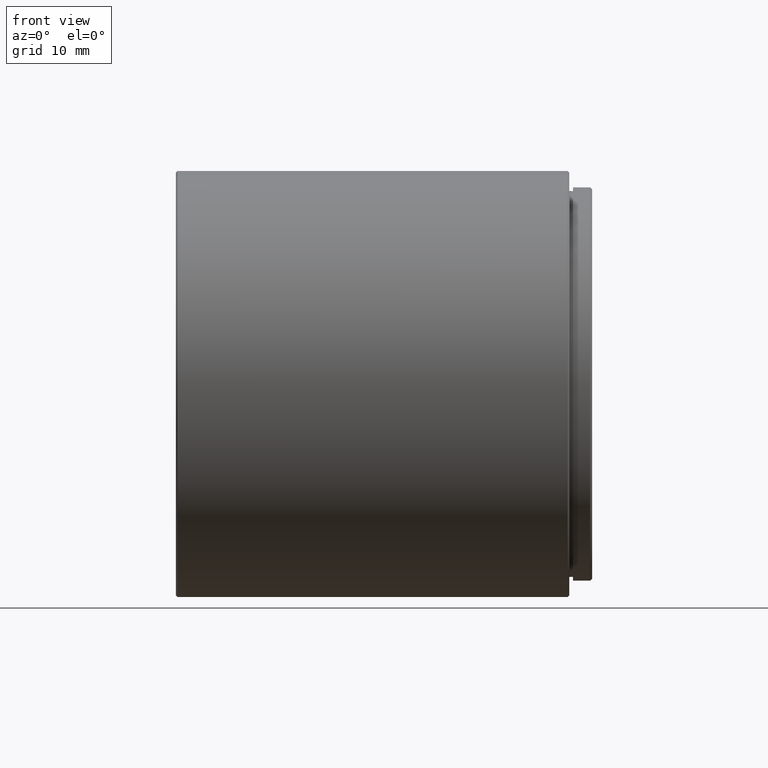
[diagram: clean part render]
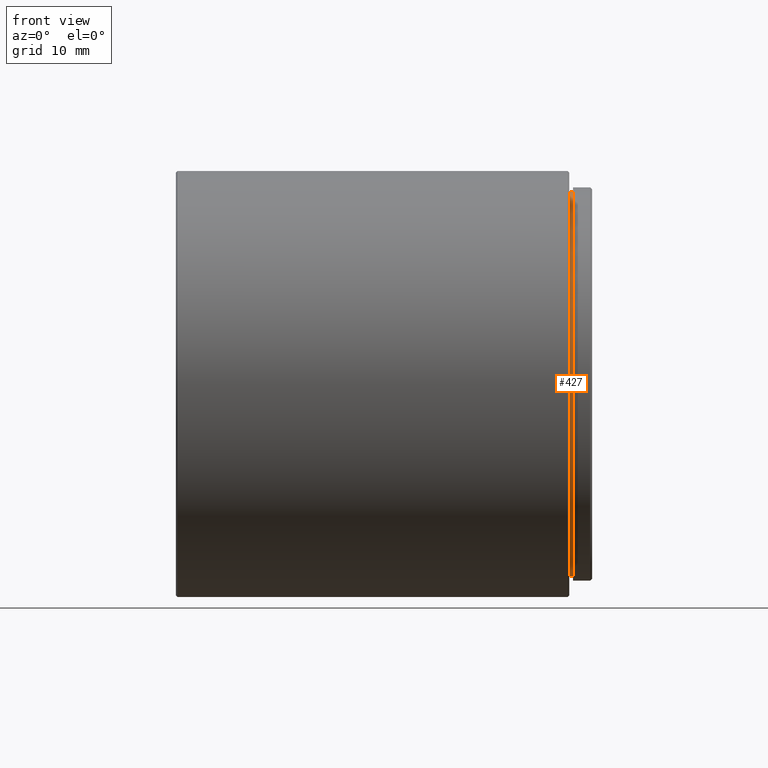
[diagram: same view with one face highlighted and labeled with its STEP entity id]
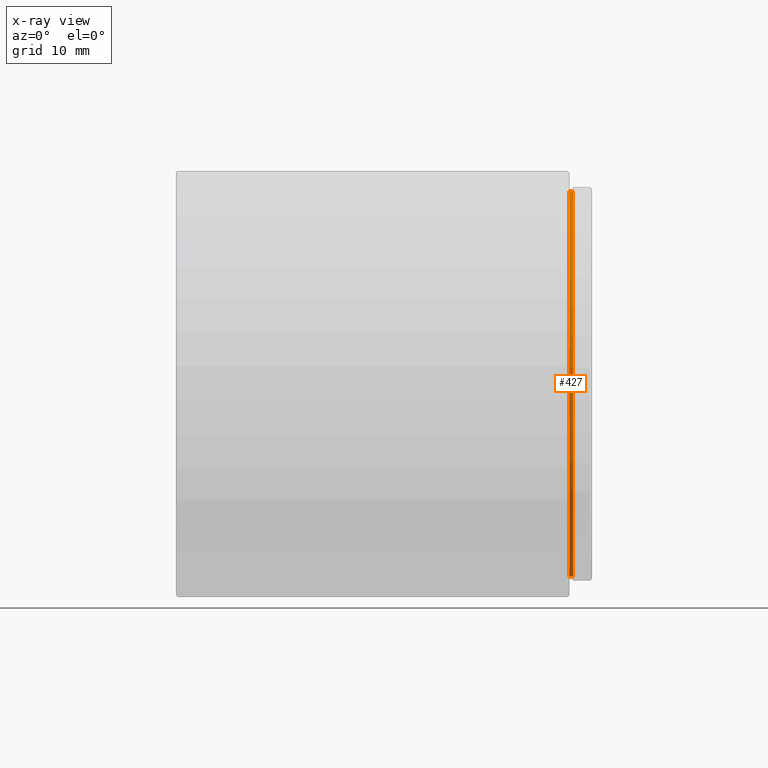
[diagram: x-ray of the same camera — body ghosted, the highlighted face saturated]
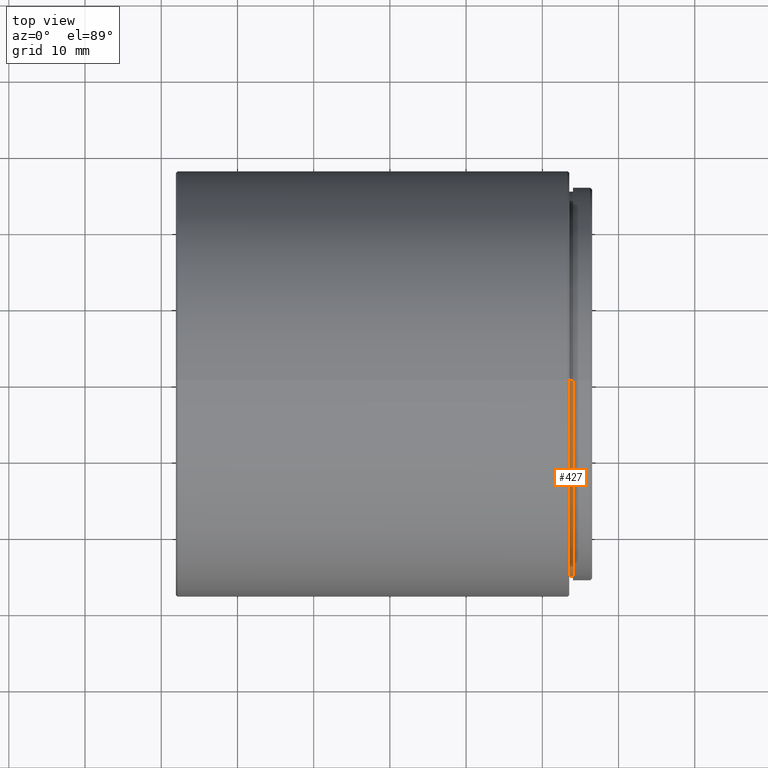
[diagram: same view with one face highlighted and labeled with its STEP entity id]
A machine part, front view. The second image highlights one B-rep face of the part: STEP entity #427.
The next image is the same camera in x-ray: the body ghosted, the highlighted face saturated — about 0% of this face is hidden behind the body in this view.
A second angle (top view) of the same face is appended — the face is thin or edge-on in the first view.
In plain terms, the highlighted cylindrical surface (partial cylindrical patch) has radius 25.3 mm, axis along (-1, -0, -0).
Its self-contained STEP definition (entity closure, byte-faithful):
#12 = CIRCLE ( 'NONE', #1010, 25.30000000000000071 ) ;
#43 = EDGE_CURVE ( 'NONE', #1130, #1492, #657, .T. ) ;
#63 = DIRECTION ( 'NONE',  ( -1.000000000000000000, -0.000000000000000000, -0.000000000000000000 ) ) ;
#97 = AXIS2_PLACEMENT_3D ( 'NONE', #625, #1472, #869 ) ;
#129 = ORIENTED_EDGE ( 'NONE', *, *, #1464, .T. ) ;
#327 = VERTEX_POINT ( 'NONE', #640 ) ;
#396 = DIRECTION ( 'NONE',  ( 0.000000000000000000, 0.000000000000000000, -1.000000000000000000 ) ) ;
#403 = CYLINDRICAL_SURFACE ( 'NONE', #1568, 25.30000000000000071 ) ;
#427 = ADVANCED_FACE ( 'NONE', ( #676 ), #403, .T. ) ;
#559 = ORIENTED_EDGE ( 'NONE', *, *, #867, .T. ) ;
#615 = CARTESIAN_POINT ( 'NONE',  ( 3.525999999999982926, -20.10857142857141611, -25.30000000000000071 ) ) ;
#625 = CARTESIAN_POINT ( 'NONE',  ( 3.525999999999982926, -20.10857142857141966, 0.000000000000000000 ) ) ;
#629 = VERTEX_POINT ( 'NONE', #1571 ) ;
#638 = DIRECTION ( 'NONE',  ( 1.000000000000000000, 0.000000000000000000, 0.000000000000000000 ) ) ;
#640 = CARTESIAN_POINT ( 'NONE',  ( 4.025999999999982926, -20.10857142857141966, 25.30000000000000071 ) ) ;
#657 = LINE ( 'NONE', #1425, #1037 ) ;
#676 = FACE_OUTER_BOUND ( 'NONE', #1173, .T. ) ;
#710 = LINE ( 'NONE', #905, #1558 ) ;
#757 = DIRECTION ( 'NONE',  ( -1.000000000000000000, -0.000000000000000000, -0.000000000000000000 ) ) ;
#787 = EDGE_CURVE ( 'NONE', #327, #1130, #12, .T. ) ;
#867 = EDGE_CURVE ( 'NONE', #327, #629, #710, .T. ) ;
#869 = DIRECTION ( 'NONE',  ( 0.000000000000000000, 0.000000000000000000, -1.000000000000000000 ) ) ;
#905 = CARTESIAN_POINT ( 'NONE',  ( 4.025999999999982926, -20.10857142857141966, 25.30000000000000071 ) ) ;
#992 = CARTESIAN_POINT ( 'NONE',  ( 4.025999999999982926, -20.10857142857141966, 0.000000000000000000 ) ) ;
#1010 = AXIS2_PLACEMENT_3D ( 'NONE', #992, #638, #396 ) ;
#1037 = VECTOR ( 'NONE', #1072, 1000.000000000000000 ) ;
#1050 = CARTESIAN_POINT ( 'NONE',  ( 4.025999999999982926, -20.10857142857141611, -25.30000000000000071 ) ) ;
#1072 = DIRECTION ( 'NONE',  ( -1.000000000000000000, -0.000000000000000000, -0.000000000000000000 ) ) ;
#1130 = VERTEX_POINT ( 'NONE', #1050 ) ;
#1155 = ORIENTED_EDGE ( 'NONE', *, *, #43, .F. ) ;
#1173 = EDGE_LOOP ( 'NONE', ( #1155, #1243, #559, #129 ) ) ;
#1243 = ORIENTED_EDGE ( 'NONE', *, *, #787, .F. ) ;
#1292 = CIRCLE ( 'NONE', #97, 25.30000000000000071 ) ;
#1376 = CARTESIAN_POINT ( 'NONE',  ( 4.025999999999982926, -20.10857142857141966, 0.000000000000000000 ) ) ;
#1413 = DIRECTION ( 'NONE',  ( 0.000000000000000000, 0.000000000000000000, 1.000000000000000000 ) ) ;
#1425 = CARTESIAN_POINT ( 'NONE',  ( 4.025999999999982926, -20.10857142857141611, -25.30000000000000071 ) ) ;
#1464 = EDGE_CURVE ( 'NONE', #629, #1492, #1292, .T. ) ;
#1472 = DIRECTION ( 'NONE',  ( 1.000000000000000000, 0.000000000000000000, 0.000000000000000000 ) ) ;
#1492 = VERTEX_POINT ( 'NONE', #615 ) ;
#1558 = VECTOR ( 'NONE', #63, 1000.000000000000000 ) ;
#1568 = AXIS2_PLACEMENT_3D ( 'NONE', #1376, #757, #1413 ) ;
#1571 = CARTESIAN_POINT ( 'NONE',  ( 3.525999999999982926, -20.10857142857141966, 25.30000000000000071 ) ) ;